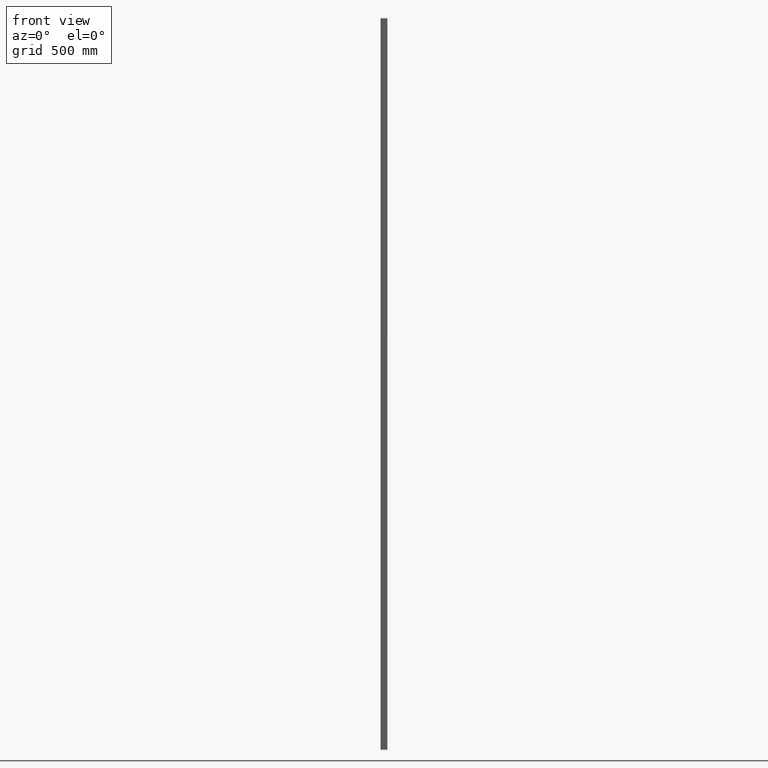
[diagram: clean part render]
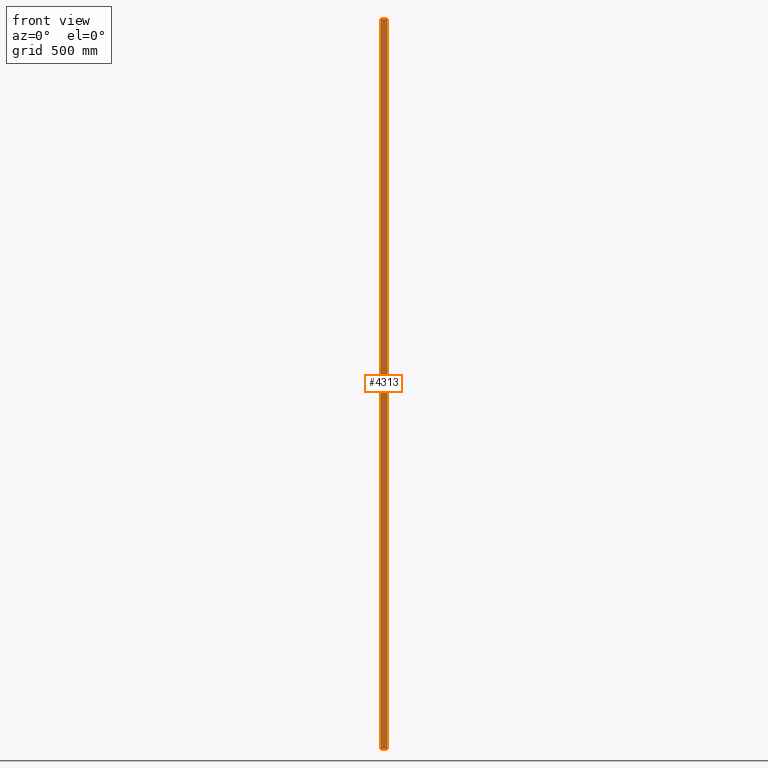
[diagram: same view with one face highlighted and labeled with its STEP entity id]
A machine part, front view. The second image highlights one B-rep face of the part: STEP entity #4313.
In plain terms, the highlighted planar face has unit normal (0, 1, 0).
Its self-contained STEP definition (entity closure, byte-faithful):
#19 = DIRECTION ( 'NONE',  ( 0.0000000000000000000, -0.0000000000000000000, 1.000000000000000000 ) ) ;
#178 = DIRECTION ( 'NONE',  ( 1.000000000000000000, 0.0000000000000000000, 0.0000000000000000000 ) ) ;
#1145 = PLANE ( 'NONE',  #13436 ) ;
#1262 = CARTESIAN_POINT ( 'NONE',  ( -12.00000000000000200, 18.00000000000000400, -1500.000000000000000 ) ) ;
#2115 = LINE ( 'NONE', #7225, #9207 ) ;
#2225 = VERTEX_POINT ( 'NONE', #4754 ) ;
#2865 = ORIENTED_EDGE ( 'NONE', *, *, #8400, .F. ) ;
#2876 = DIRECTION ( 'NONE',  ( -0.0000000000000000000, -0.0000000000000000000, -1.000000000000000000 ) ) ;
#3080 = VECTOR ( 'NONE', #14926, 1000.000000000000000 ) ;
#3098 = CARTESIAN_POINT ( 'NONE',  ( -12.00000000000000200, 18.00000000000000400, 1500.000000000000000 ) ) ;
#3363 = CARTESIAN_POINT ( 'NONE',  ( -12.00000000000000200, 18.00000000000000400, 1500.000000000000000 ) ) ;
#3601 = CARTESIAN_POINT ( 'NONE',  ( -12.00000000000000200, 18.00000000000000400, 1500.000000000000000 ) ) ;
#4313 = ADVANCED_FACE ( 'NONE', ( #14689 ), #1145, .F. ) ;
#4743 = ORIENTED_EDGE ( 'NONE', *, *, #14839, .T. ) ;
#4754 = CARTESIAN_POINT ( 'NONE',  ( 11.99999999999999600, 18.00000000000000400, 1500.000000000000000 ) ) ;
#5222 = ORIENTED_EDGE ( 'NONE', *, *, #11534, .F. ) ;
#5332 = LINE ( 'NONE', #3098, #3080 ) ;
#5834 = ORIENTED_EDGE ( 'NONE', *, *, #8826, .T. ) ;
#5876 = VECTOR ( 'NONE', #178, 1000.000000000000000 ) ;
#6058 = LINE ( 'NONE', #1262, #5876 ) ;
#7225 = CARTESIAN_POINT ( 'NONE',  ( 11.99999999999999600, 18.00000000000000400, 1500.000000000000000 ) ) ;
#7741 = VERTEX_POINT ( 'NONE', #12344 ) ;
#8123 = LINE ( 'NONE', #13600, #11257 ) ;
#8400 = EDGE_CURVE ( 'NONE', #2225, #7741, #2115, .T. ) ;
#8826 = EDGE_CURVE ( 'NONE', #13787, #7741, #6058, .T. ) ;
#9207 = VECTOR ( 'NONE', #13106, 1000.000000000000000 ) ;
#9585 = DIRECTION ( 'NONE',  ( 0.0000000000000000000, 1.000000000000000000, 0.0000000000000000000 ) ) ;
#9765 = CARTESIAN_POINT ( 'NONE',  ( -12.00000000000000200, 18.00000000000000400, -1500.000000000000000 ) ) ;
#11257 = VECTOR ( 'NONE', #2876, 1000.000000000000000 ) ;
#11534 = EDGE_CURVE ( 'NONE', #14138, #2225, #5332, .T. ) ;
#12344 = CARTESIAN_POINT ( 'NONE',  ( 11.99999999999999600, 18.00000000000000400, -1500.000000000000000 ) ) ;
#13106 = DIRECTION ( 'NONE',  ( -0.0000000000000000000, -0.0000000000000000000, -1.000000000000000000 ) ) ;
#13340 = EDGE_LOOP ( 'NONE', ( #5834, #2865, #5222, #4743 ) ) ;
#13436 = AXIS2_PLACEMENT_3D ( 'NONE', #3601, #9585, #19 ) ;
#13600 = CARTESIAN_POINT ( 'NONE',  ( -12.00000000000000200, 18.00000000000000400, 1500.000000000000000 ) ) ;
#13787 = VERTEX_POINT ( 'NONE', #9765 ) ;
#14138 = VERTEX_POINT ( 'NONE', #3363 ) ;
#14689 = FACE_OUTER_BOUND ( 'NONE', #13340, .T. ) ;
#14839 = EDGE_CURVE ( 'NONE', #14138, #13787, #8123, .T. ) ;
#14926 = DIRECTION ( 'NONE',  ( 1.000000000000000000, 0.0000000000000000000, 0.0000000000000000000 ) ) ;